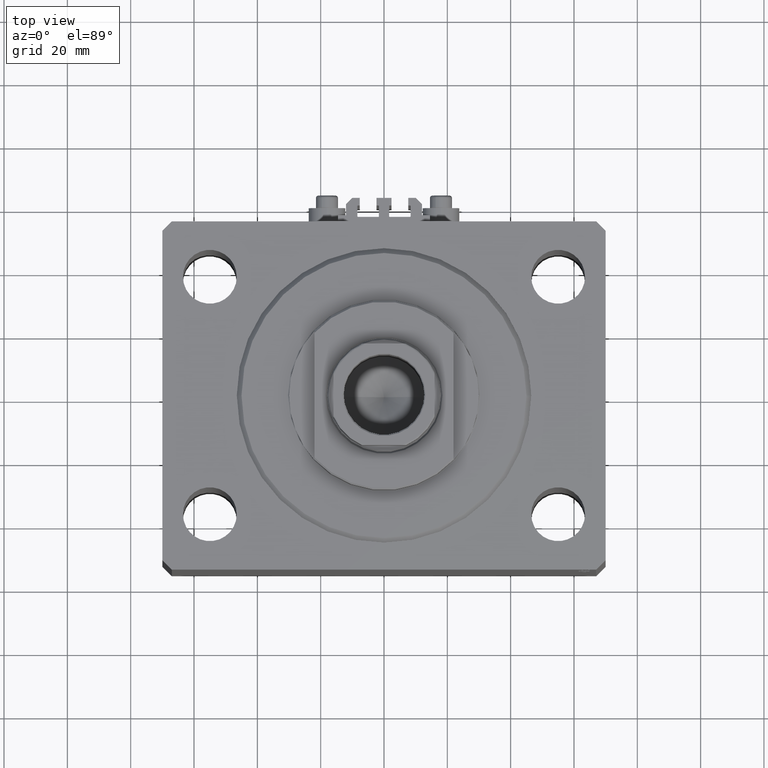
[diagram: clean part render]
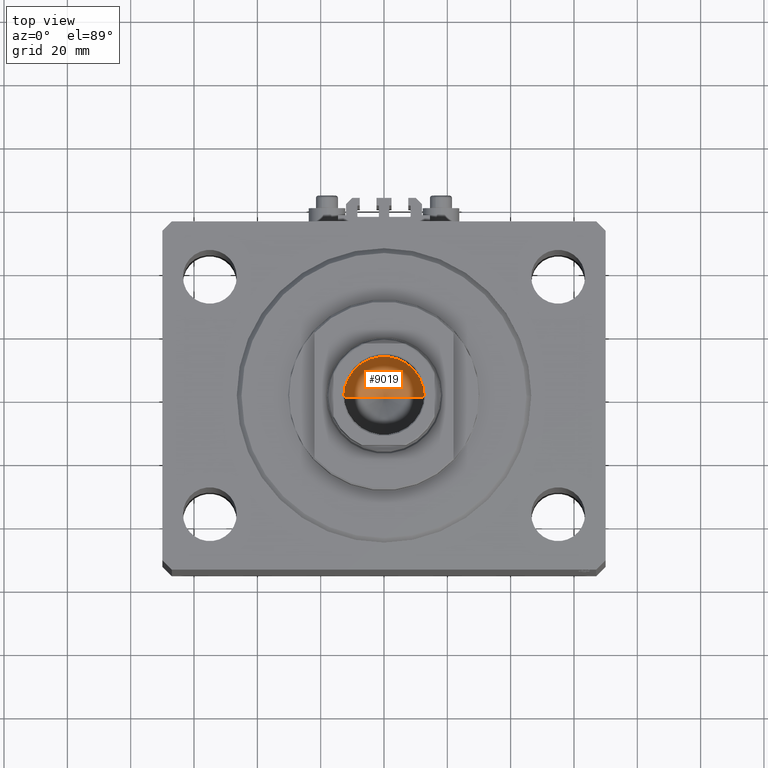
[diagram: same view with one face highlighted and labeled with its STEP entity id]
A machine part, top view. The second image highlights one B-rep face of the part: STEP entity #9019.
In plain terms, the highlighted conical surface has half-angle 59 deg.
Its self-contained STEP definition (entity closure, byte-faithful):
#354 = LINE ( 'NONE', #28456, #21697 ) ;
#4050 = VERTEX_POINT ( 'NONE', #42521 ) ;
#4992 = EDGE_LOOP ( 'NONE', ( #9318, #26865, #17519 ) ) ;
#7487 = DIRECTION ( 'NONE',  ( -0.8571673007021117785, 1.049727191138617956E-16, 0.5150380749100550437 ) ) ;
#9019 = ADVANCED_FACE ( 'NONE', ( #39529 ), #24788, .F. ) ;
#9318 = ORIENTED_EDGE ( 'NONE', *, *, #11607, .F. ) ;
#10833 = CARTESIAN_POINT ( 'NONE',  ( -12.74999999999999112, 1.561424668912874125E-15, 70.00000000000000000 ) ) ;
#11059 = AXIS2_PLACEMENT_3D ( 'NONE', #43110, #32324, #28272 ) ;
#11607 = EDGE_CURVE ( 'NONE', #26282, #27076, #25190, .T. ) ;
#13418 = VECTOR ( 'NONE', #7487, 1000.000000000000000 ) ;
#17519 = ORIENTED_EDGE ( 'NONE', *, *, #45746, .T. ) ;
#21697 = VECTOR ( 'NONE', #27989, 1000.000000000000000 ) ;
#24788 = CONICAL_SURFACE ( 'NONE', #11059, 12.74999999999999112, 1.029744258676653423 ) ;
#25190 = LINE ( 'NONE', #10833, #13418 ) ;
#26282 = VERTEX_POINT ( 'NONE', #39738 ) ;
#26865 = ORIENTED_EDGE ( 'NONE', *, *, #39430, .T. ) ;
#27076 = VERTEX_POINT ( 'NONE', #37439 ) ;
#27989 = DIRECTION ( 'NONE',  ( 0.8571673007021117785, 0.000000000000000000, 0.5150380749100550437 ) ) ;
#28272 = DIRECTION ( 'NONE',  ( 1.000000000000000000, 0.000000000000000000, 0.000000000000000000 ) ) ;
#28456 = CARTESIAN_POINT ( 'NONE',  ( 12.74999999999999112, 0.000000000000000000, 70.00000000000000000 ) ) ;
#29114 = DIRECTION ( 'NONE',  ( -0.000000000000000000, -0.000000000000000000, 1.000000000000000000 ) ) ;
#29442 = AXIS2_PLACEMENT_3D ( 'NONE', #43251, #29114, #43706 ) ;
#32324 = DIRECTION ( 'NONE',  ( -0.000000000000000000, -0.000000000000000000, 1.000000000000000000 ) ) ;
#37439 = CARTESIAN_POINT ( 'NONE',  ( -12.74999999999999112, 1.561424668912874125E-15, 70.00000000000000000 ) ) ;
#39430 = EDGE_CURVE ( 'NONE', #26282, #4050, #354, .T. ) ;
#39529 = FACE_OUTER_BOUND ( 'NONE', #4992, .T. ) ;
#39738 = CARTESIAN_POINT ( 'NONE',  ( -1.307202896762960287E-14, 0.000000000000000000, 62.33902710739860709 ) ) ;
#42521 = CARTESIAN_POINT ( 'NONE',  ( 12.74999999999999112, 0.000000000000000000, 70.00000000000000000 ) ) ;
#43110 = CARTESIAN_POINT ( 'NONE',  ( 0.000000000000000000, 0.000000000000000000, 70.00000000000000000 ) ) ;
#43213 = CIRCLE ( 'NONE', #29442, 12.74999999999999112 ) ;
#43251 = CARTESIAN_POINT ( 'NONE',  ( 0.000000000000000000, 0.000000000000000000, 70.00000000000000000 ) ) ;
#43706 = DIRECTION ( 'NONE',  ( 1.000000000000000000, 0.000000000000000000, 0.000000000000000000 ) ) ;
#45746 = EDGE_CURVE ( 'NONE', #4050, #27076, #43213, .T. ) ;